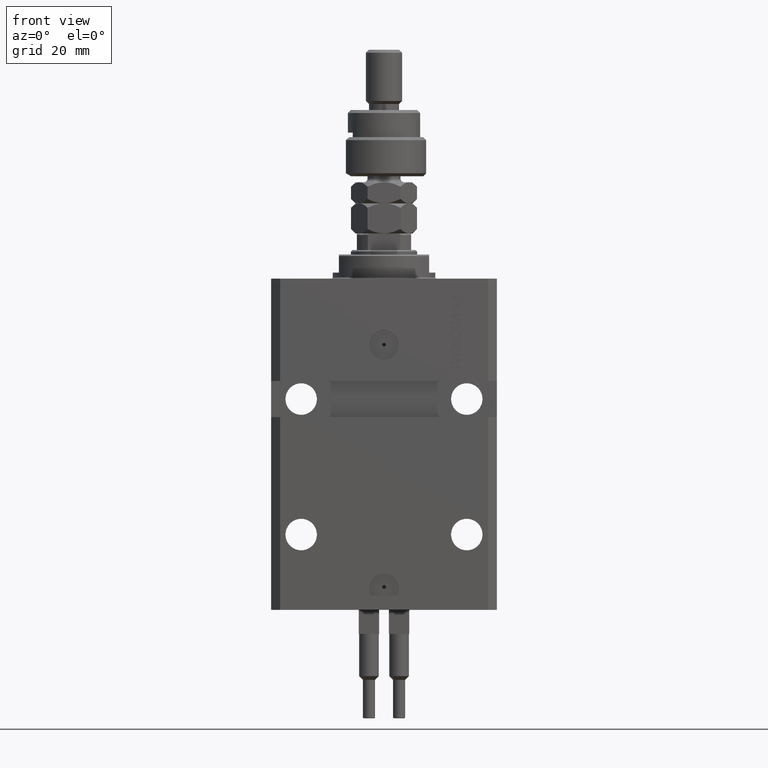
[diagram: clean part render]
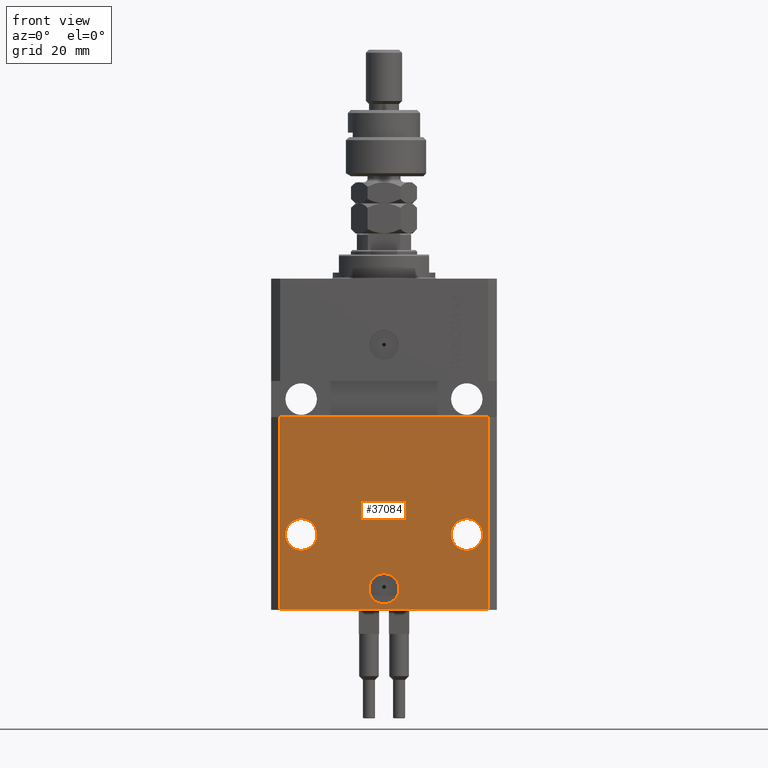
[diagram: same view with one face highlighted and labeled with its STEP entity id]
A machine part, front view. The second image highlights one B-rep face of the part: STEP entity #37084.
In plain terms, the highlighted planar face has unit normal (0, -1, 0).
Its self-contained STEP definition (entity closure, byte-faithful):
#288 = EDGE_CURVE ( 'NONE', #49191, #13428, #43173, .T. ) ;
#310 = DIRECTION ( 'NONE',  ( 1.176083712526788232E-16, -1.000000000000000000, 0.000000000000000000 ) ) ;
#722 = FACE_BOUND ( 'NONE', #7633, .T. ) ;
#1492 = FACE_BOUND ( 'NONE', #16712, .T. ) ;
#3044 = ORIENTED_EDGE ( 'NONE', *, *, #29564, .F. ) ;
#4245 = LINE ( 'NONE', #11997, #24081 ) ;
#5273 = EDGE_CURVE ( 'NONE', #39161, #26817, #20748, .T. ) ;
#6103 = VERTEX_POINT ( 'NONE', #43489 ) ;
#6370 = EDGE_CURVE ( 'NONE', #11522, #45575, #7081, .T. ) ;
#7046 = LINE ( 'NONE', #42138, #27260 ) ;
#7081 = CIRCLE ( 'NONE', #15346, 5.249999999999994671 ) ;
#7633 = EDGE_LOOP ( 'NONE', ( #13591, #28057 ) ) ;
#8700 = FACE_OUTER_BOUND ( 'NONE', #16638, .T. ) ;
#8887 = CARTESIAN_POINT ( 'NONE',  ( -37.50000000000000000, -27.50000000000000000, -46.00000000000000000 ) ) ;
#8944 = CARTESIAN_POINT ( 'NONE',  ( -34.49999999999998579, -27.50000000000000000, -46.00000000000000000 ) ) ;
#9183 = CARTESIAN_POINT ( 'NONE',  ( 22.25000000000002132, -27.49999999999999289, -84.99999999999998579 ) ) ;
#9233 = CIRCLE ( 'NONE', #38069, 5.000000000000006217 ) ;
#9245 = DIRECTION ( 'NONE',  ( 1.000000000000000000, 0.000000000000000000, 0.000000000000000000 ) ) ;
#9249 = ORIENTED_EDGE ( 'NONE', *, *, #5273, .F. ) ;
#11341 = AXIS2_PLACEMENT_3D ( 'NONE', #16648, #43998, #27519 ) ;
#11522 = VERTEX_POINT ( 'NONE', #49265 ) ;
#11997 = CARTESIAN_POINT ( 'NONE',  ( -34.49999999999998579, -27.49999999999999645, -110.0000000000000000 ) ) ;
#12509 = EDGE_LOOP ( 'NONE', ( #40455, #18242 ) ) ;
#13071 = DIRECTION ( 'NONE',  ( -1.000000000000000000, 0.000000000000000000, 0.000000000000000000 ) ) ;
#13428 = VERTEX_POINT ( 'NONE', #28546 ) ;
#13591 = ORIENTED_EDGE ( 'NONE', *, *, #40986, .F. ) ;
#13661 = AXIS2_PLACEMENT_3D ( 'NONE', #40779, #32812, #25313 ) ;
#13890 = CARTESIAN_POINT ( 'NONE',  ( 0.000000000000000000, -27.49999999999999645, -103.0000000000000000 ) ) ;
#15346 = AXIS2_PLACEMENT_3D ( 'NONE', #33965, #30358, #22857 ) ;
#15483 = CARTESIAN_POINT ( 'NONE',  ( -32.75000000000000711, -27.50000000000000000, -84.99999999999998579 ) ) ;
#15715 = DIRECTION ( 'NONE',  ( 1.000000000000000000, 0.000000000000000000, 0.000000000000000000 ) ) ;
#16444 = CARTESIAN_POINT ( 'NONE',  ( -34.49999999999998579, -27.49999999999999645, -110.0000000000000000 ) ) ;
#16638 = EDGE_LOOP ( 'NONE', ( #9249, #46793, #43037, #28587 ) ) ;
#16648 = CARTESIAN_POINT ( 'NONE',  ( 0.000000000000000000, -27.49999999999999645, -103.0000000000000000 ) ) ;
#16697 = DIRECTION ( 'NONE',  ( 0.000000000000000000, -0.000000000000000000, -1.000000000000000000 ) ) ;
#16712 = EDGE_LOOP ( 'NONE', ( #31879, #3044 ) ) ;
#16728 = CIRCLE ( 'NONE', #35707, 5.249999999999994671 ) ;
#17225 = FACE_BOUND ( 'NONE', #12509, .T. ) ;
#17408 = DIRECTION ( 'NONE',  ( 1.000000000000000000, 9.251858538542972814E-17, -9.251858538542972814E-17 ) ) ;
#18023 = VERTEX_POINT ( 'NONE', #42394 ) ;
#18242 = ORIENTED_EDGE ( 'NONE', *, *, #288, .F. ) ;
#19164 = DIRECTION ( 'NONE',  ( 0.000000000000000000, 0.000000000000000000, 1.000000000000000000 ) ) ;
#20748 = LINE ( 'NONE', #8887, #35874 ) ;
#22857 = DIRECTION ( 'NONE',  ( 1.000000000000000000, 0.000000000000000000, 0.000000000000000000 ) ) ;
#23039 = CARTESIAN_POINT ( 'NONE',  ( 5.000000000000006217, -27.49999999999999645, -103.0000000000000000 ) ) ;
#23696 = LINE ( 'NONE', #35820, #25287 ) ;
#24054 = EDGE_CURVE ( 'NONE', #6103, #26817, #7046, .T. ) ;
#24081 = VECTOR ( 'NONE', #24345, 1000.000000000000000 ) ;
#24345 = DIRECTION ( 'NONE',  ( 0.000000000000000000, 0.000000000000000000, 1.000000000000000000 ) ) ;
#25287 = VECTOR ( 'NONE', #15715, 1000.000000000000000 ) ;
#25313 = DIRECTION ( 'NONE',  ( -1.000000000000000000, 0.000000000000000000, 0.000000000000000000 ) ) ;
#25491 = DIRECTION ( 'NONE',  ( 1.176083712526788232E-16, -1.000000000000000000, 0.000000000000000000 ) ) ;
#26411 = EDGE_CURVE ( 'NONE', #18023, #28960, #9233, .T. ) ;
#26817 = VERTEX_POINT ( 'NONE', #34202 ) ;
#26839 = AXIS2_PLACEMENT_3D ( 'NONE', #16444, #40952, #16697 ) ;
#27260 = VECTOR ( 'NONE', #19164, 1000.000000000000000 ) ;
#27519 = DIRECTION ( 'NONE',  ( 1.000000000000000000, 0.000000000000000000, 0.000000000000000000 ) ) ;
#28057 = ORIENTED_EDGE ( 'NONE', *, *, #26411, .F. ) ;
#28546 = CARTESIAN_POINT ( 'NONE',  ( -22.25000000000002132, -27.50000000000000000, -84.99999999999998579 ) ) ;
#28587 = ORIENTED_EDGE ( 'NONE', *, *, #24054, .T. ) ;
#28805 = DIRECTION ( 'NONE',  ( 1.176083712526788232E-16, -1.000000000000000000, 0.000000000000000000 ) ) ;
#28960 = VERTEX_POINT ( 'NONE', #23039 ) ;
#29190 = AXIS2_PLACEMENT_3D ( 'NONE', #44015, #28805, #13071 ) ;
#29564 = EDGE_CURVE ( 'NONE', #45575, #11522, #16728, .T. ) ;
#30358 = DIRECTION ( 'NONE',  ( 1.176083712526788232E-16, -1.000000000000000000, 0.000000000000000000 ) ) ;
#31102 = EDGE_CURVE ( 'NONE', #41707, #39161, #4245, .T. ) ;
#31879 = ORIENTED_EDGE ( 'NONE', *, *, #6370, .F. ) ;
#32812 = DIRECTION ( 'NONE',  ( 1.176083712526788232E-16, -1.000000000000000000, 0.000000000000000000 ) ) ;
#33965 = CARTESIAN_POINT ( 'NONE',  ( 27.50000000000001421, -27.49999999999999289, -84.99999999999998579 ) ) ;
#34064 = CARTESIAN_POINT ( 'NONE',  ( -34.49999999999998579, -27.49999999999999645, -110.0000000000000000 ) ) ;
#34202 = CARTESIAN_POINT ( 'NONE',  ( 34.49999999999999289, -27.49999999999999289, -46.00000000000000711 ) ) ;
#34398 = CIRCLE ( 'NONE', #11341, 5.000000000000006217 ) ;
#35707 = AXIS2_PLACEMENT_3D ( 'NONE', #47241, #310, #50867 ) ;
#35820 = CARTESIAN_POINT ( 'NONE',  ( -34.49999999999998579, -27.49999999999999645, -110.0000000000000000 ) ) ;
#35874 = VECTOR ( 'NONE', #17408, 1000.000000000000000 ) ;
#37084 = ADVANCED_FACE ( 'NONE', ( #722, #1492, #17225, #8700 ), #40436, .T. ) ;
#37418 = EDGE_CURVE ( 'NONE', #13428, #49191, #46575, .T. ) ;
#38069 = AXIS2_PLACEMENT_3D ( 'NONE', #13890, #25491, #9245 ) ;
#39161 = VERTEX_POINT ( 'NONE', #8944 ) ;
#40436 = PLANE ( 'NONE',  #26839 ) ;
#40455 = ORIENTED_EDGE ( 'NONE', *, *, #37418, .F. ) ;
#40742 = EDGE_CURVE ( 'NONE', #41707, #6103, #23696, .T. ) ;
#40779 = CARTESIAN_POINT ( 'NONE',  ( -27.50000000000001421, -27.50000000000000000, -84.99999999999998579 ) ) ;
#40952 = DIRECTION ( 'NONE',  ( 0.000000000000000000, -1.000000000000000000, 0.000000000000000000 ) ) ;
#40986 = EDGE_CURVE ( 'NONE', #28960, #18023, #34398, .T. ) ;
#41707 = VERTEX_POINT ( 'NONE', #34064 ) ;
#42138 = CARTESIAN_POINT ( 'NONE',  ( 34.49999999999999289, -27.49999999999999645, -110.0000000000000000 ) ) ;
#42394 = CARTESIAN_POINT ( 'NONE',  ( -5.000000000000006217, -27.49999999999999645, -103.0000000000000000 ) ) ;
#43037 = ORIENTED_EDGE ( 'NONE', *, *, #40742, .T. ) ;
#43173 = CIRCLE ( 'NONE', #29190, 5.249999999999994671 ) ;
#43489 = CARTESIAN_POINT ( 'NONE',  ( 34.49999999999999289, -27.49999999999999645, -110.0000000000000000 ) ) ;
#43998 = DIRECTION ( 'NONE',  ( 1.176083712526788232E-16, -1.000000000000000000, 0.000000000000000000 ) ) ;
#44015 = CARTESIAN_POINT ( 'NONE',  ( -27.50000000000001421, -27.50000000000000000, -84.99999999999998579 ) ) ;
#45575 = VERTEX_POINT ( 'NONE', #9183 ) ;
#46575 = CIRCLE ( 'NONE', #13661, 5.249999999999994671 ) ;
#46793 = ORIENTED_EDGE ( 'NONE', *, *, #31102, .F. ) ;
#47241 = CARTESIAN_POINT ( 'NONE',  ( 27.50000000000001421, -27.49999999999999289, -84.99999999999998579 ) ) ;
#49191 = VERTEX_POINT ( 'NONE', #15483 ) ;
#49265 = CARTESIAN_POINT ( 'NONE',  ( 32.75000000000000711, -27.49999999999999289, -84.99999999999998579 ) ) ;
#50867 = DIRECTION ( 'NONE',  ( 1.000000000000000000, 0.000000000000000000, 0.000000000000000000 ) ) ;